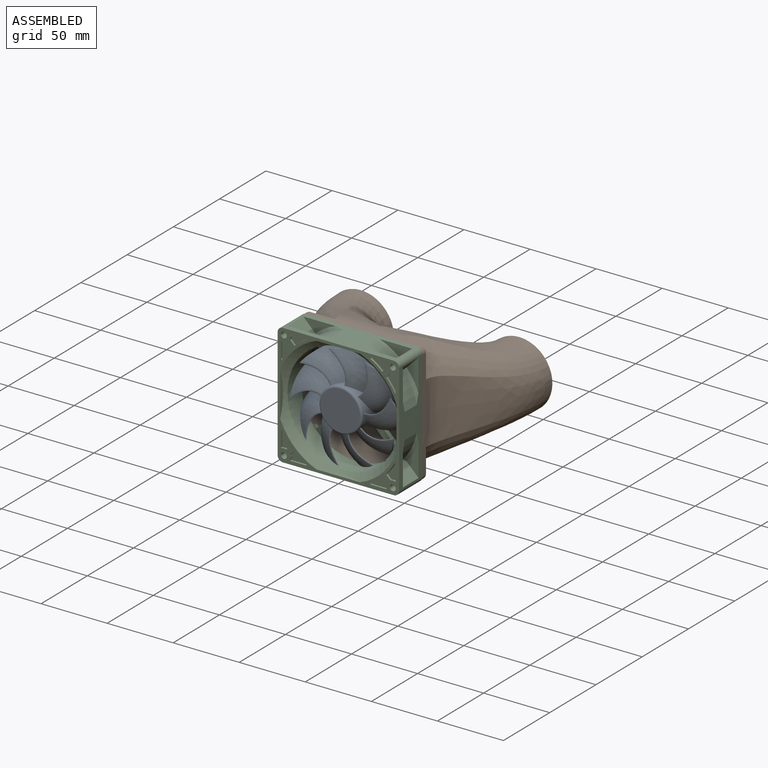
[diagram: assembled view]
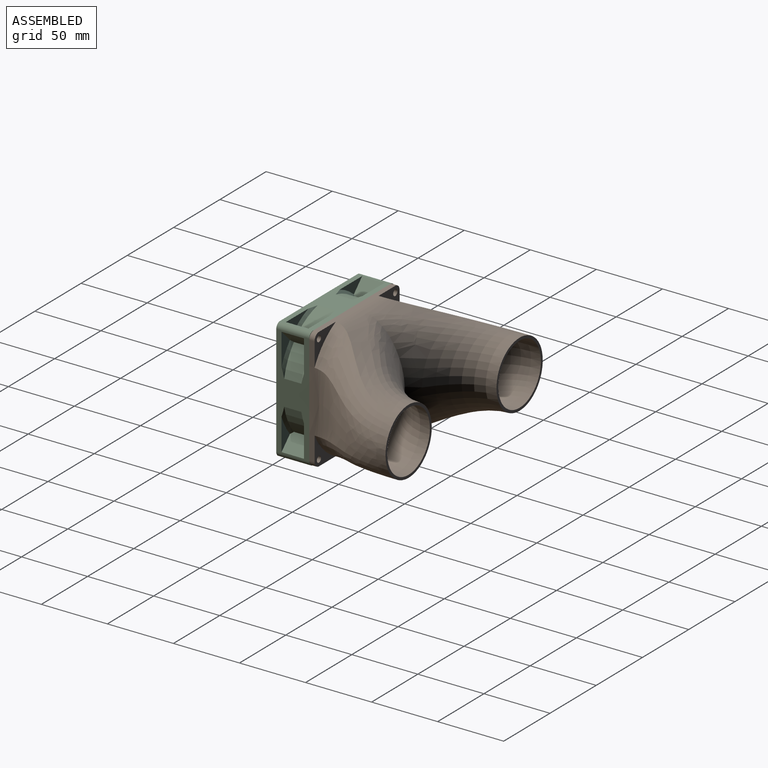
[diagram: assembled view, second angle]
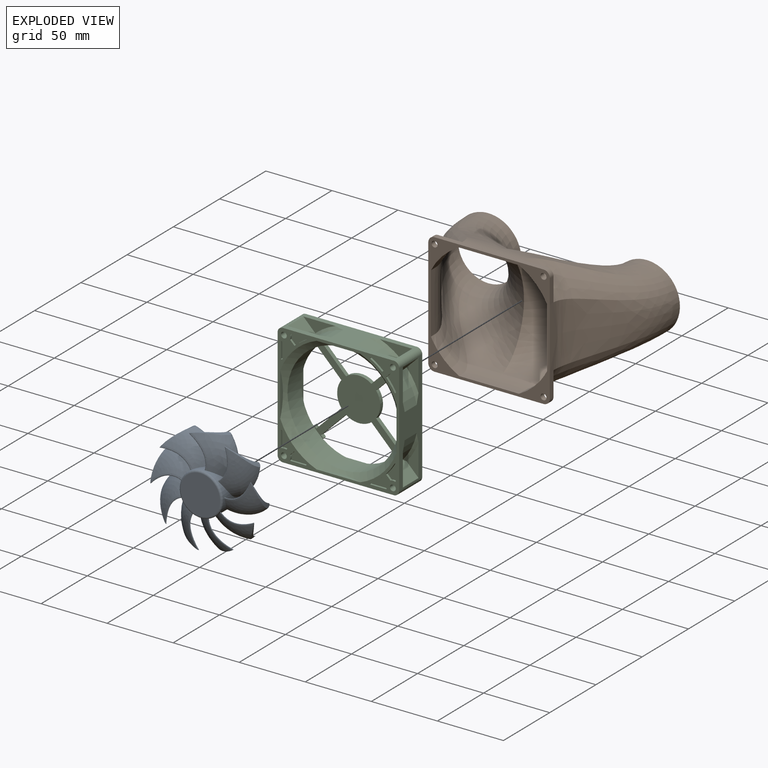
[diagram: exploded view]
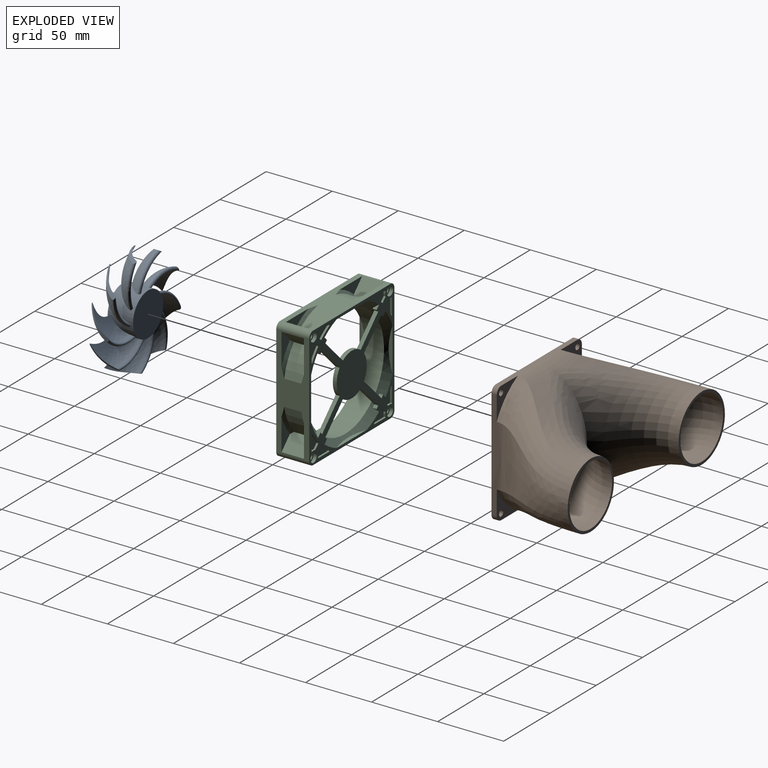
[diagram: exploded view, second angle]
ASSEMBLY  parts=3 mates=2
PART A: 49 faces, bbox 100.9x20x100.5 mm
  f0: plane 29.6x29.6mm, normal (0,-1,0), area 688.1mm2, adj f2
  f1: plane 32.6x32.6mm, normal (0,1,0), area 834.7mm2, adj f35
  f2: torus R=14.8mm, axis (0,-1,0), area 233.2mm2, adj f0,f35
  f3: bspline ~27.34x15.52mm, area 94.4mm2, adj f4,f5,f35,f48
  f4: bspline ~43.58x32.95mm, area 582mm2, adj f3,f6,f35,f48
  f5: bspline ~41.08x30.81mm, area 537.9mm2, adj f3,f6,f35,f48
  f6: bspline ~38.07x32.1mm, area 130.3mm2, adj f4,f5,f35,f48
  f7: bspline ~28.72x14.84mm, area 94.4mm2, adj f8,f10,f35,f47
  f8: bspline ~51.68x27.52mm, area 582mm2, adj f7,f9,f35,f47
  f9: bspline ~48.87x17.06mm, area 130.3mm2, adj f8,f10,f35,f47
  f10: bspline ~48.58x25.61mm, area 537.9mm2, adj f7,f9,f35,f47
  f11: bspline ~29.45x12.53mm, area 94.4mm2, adj f12,f14,f35,f46
  f12: bspline ~48.28x29.51mm, area 582mm2, adj f11,f13,f35,f46
  f13: bspline ~43.02x26.7mm, area 130.3mm2, adj f12,f14,f35,f46
  f14: bspline ~45.49x27.46mm, area 537.9mm2, adj f11,f13,f35,f46
  f15: bspline ~26.27x18.04mm, area 94.4mm2, adj f16,f18,f35,f45
  f16: bspline ~48.54x31.03mm, area 582mm2, adj f15,f17,f35,f45
  f17: bspline ~46.62x21.88mm, area 130.3mm2, adj f16,f18,f35,f45
  f18: bspline ~45.61x29.03mm, area 537.9mm2, adj f15,f17,f35,f45
  f19: bspline ~30.67x9.94mm, area 94.4mm2, adj f20,f22,f35,f44
  f20: bspline ~51.51x26.33mm, area 582mm2, adj f19,f21,f35,f44
  f21: bspline ~46.67x21.66mm, area 130.3mm2, adj f20,f22,f35,f44
  f22: bspline ~48.51x24.37mm, area 537.9mm2, adj f19,f21,f35,f44
  f23: bspline ~23.03x21.23mm, area 94.4mm2, adj f24,f26,f35,f43
  f24: bspline ~43.93x34.52mm, area 582.1mm2, adj f23,f25,f35,f43
  f25: bspline ~42.95x26.97mm, area 130.3mm2, adj f24,f26,f35,f43
  f26: bspline ~41.25x32.43mm, area 538.1mm2, adj f23,f25,f35,f43
  f27: bspline ~30.95x8.89mm, area 94.4mm2, adj f28,f30,f35,f42
  f28: bspline ~53.18x23.38mm, area 582mm2, adj f27,f29,f35,f42
  f29: bspline ~48.89x16.99mm, area 130.3mm2, adj f28,f30,f35,f42
  f30: bspline ~50.05x21.49mm, area 537.9mm2, adj f27,f29,f35,f42
  f31: bspline ~24.45x19.19mm, area 94.4mm2, adj f32,f34,f35,f41
  f32: bspline ~38.04x37.99mm, area 582mm2, adj f31,f33,f35,f41
  f33: bspline ~37.98x32.31mm, area 130.3mm2, adj f32,f34,f35,f41
  f34: bspline ~35.86x35.64mm, area 537.9mm2, adj f31,f33,f35,f41
  f35: cylinder r=16.3mm len=32.6mm, axis (0,1,0), area 1561.2mm2, adj f1,f2,f3,f4,f5,f6,f7,f8
  f36: bspline ~30.3x11.8mm, area 94.4mm2, adj f35,f37,f39,f40
  f37: bspline ~53.24x24.25mm, area 582mm2, adj f35,f36,f38,f40
  f38: bspline ~49.64x12.81mm, area 130.3mm2, adj f35,f37,f39,f40
  f39: bspline ~50.08x22.41mm, area 537.9mm2, adj f35,f36,f38,f40
  f40: cylinder r=39.84mm len=22.19mm, axis (0,-1,0), area 50.1mm2, adj f36,f37,f38,f39
  f41: cylinder r=39.84mm len=19.41mm, axis (0,-1,0), area 50.2mm2, adj f31,f32,f33,f34
  f42: cylinder r=39.84mm len=21.2mm, axis (0,-1,0), area 50.2mm2, adj f27,f28,f29,f30
  f43: cylinder r=39.84mm len=21.09mm, axis (0,-1,0), area 50.2mm2, adj f23,f24,f25,f26
  f44: cylinder r=39.84mm len=19.57mm, axis (0,-1,0), area 50.2mm2, adj f19,f20,f21,f22
  f45: cylinder r=39.84mm len=22.13mm, axis (0,-1,0), area 50.2mm2, adj f15,f16,f17,f18
  f46: cylinder r=39.84mm len=17.34mm, axis (0,-1,0), area 50.2mm2, adj f11,f12,f13,f14
  f47: cylinder r=39.84mm len=22.5mm, axis (0,-1,0), area 50.2mm2, adj f7,f8,f9,f10
  f48: cylinder r=39.84mm len=17.13mm, axis (0,-1,0), area 50.2mm2, adj f3,f4,f5,f6
PART B: 39 faces, bbox 178.1x96.3x134.4 mm
  f0: bspline ~85x59.85mm, area 1921.4mm2, adj f4,f6,f7,f38
  f1: bspline ~85.04x59.77mm, area 1921.4mm2, adj f12,f13,f14,f33
  f2: bspline ~90.29x62.31mm, area 1921.4mm2, adj f12,f13,f14,f28
  f3: bspline ~81x62.31mm, area 1921.4mm2, adj f4,f6,f7,f23
  f4: bspline ~134.92x92mm, area 9193.5mm2, adj f0,f3,f5,f6,f12,f22,f37
  f5: plane 92.19x92.19mm, normal (0,0,-1), area 1353.8mm2, adj f4,f7,f8,f9,f10,f11,f12,f14
  f6: plane 50.71x50.71mm, normal (0,0,1), area 301.3mm2, adj f0,f3,f4,f7,f8,f9,f10,f11
  f7: bspline ~111.7x47.33mm, area 3213.2mm2, adj f0,f3,f5,f6,f19,f35
  f8: offset ~127.15x97.49mm, area 8884.4mm2, adj f5,f6,f9,f11,f15
  f9: offset ~100.5x63.85mm, area 1860.5mm2, adj f5,f6,f8,f10
  f10: offset ~97.9x50.71mm, area 3123.4mm2, adj f5,f6,f9,f11
  f11: offset ~100.04x66.31mm, area 1861.3mm2, adj f5,f6,f8,f10
  f12: bspline ~117.26x109.1mm, area 9193.5mm2, adj f1,f2,f4,f5,f13,f25,f30
  f13: plane 50.71x50.71mm, normal (0,0,1), area 301.3mm2, adj f1,f2,f12,f14,f15,f16,f17,f18
  f14: bspline ~111.7x47.33mm, area 3213.2mm2, adj f1,f2,f5,f13,f24,f32
  f15: offset ~127.15x97.05mm, area 8884.4mm2, adj f5,f8,f13,f16,f18
  f16: offset ~100.04x63.77mm, area 1860.5mm2, adj f5,f13,f15,f17
  f17: offset ~97.9x50.71mm, area 3123.4mm2, adj f5,f13,f16,f18
  f18: offset ~120.94x66.11mm, area 1861.3mm2, adj f5,f13,f15,f17
  f19: plane 18.05x4mm, normal (-1,0,0), area 72.2mm2, adj f5,f7,f20,f23
  f20: cylinder r=4.75mm len=4.75mm, axis (0,0,1), area 29.8mm2, adj f5,f19,f22,f23
  f21: cylinder r=2.25mm len=4.5mm, axis (0,0,1), area 56.5mm2, adj f5,f23
  f22: plane 18.05x4mm, normal (0,-1,0), area 72.2mm2, adj f4,f5,f20,f23
  f23: plane 22.83x22.83mm, normal (0,0,1), area 183.1mm2, adj f3,f19,f20,f21,f22
  f24: plane 18.05x4mm, normal (1,0,0), area 72.2mm2, adj f5,f14,f26,f28
  f25: plane 18.05x4mm, normal (0,-1,0), area 72.2mm2, adj f5,f12,f26,f28
  f26: cylinder r=4.75mm len=4.75mm, axis (0,0,1), area 29.8mm2, adj f5,f24,f25,f28
  f27: cylinder r=2.25mm len=4.5mm, axis (0,0,1), area 56.5mm2, adj f5,f28
  f28: plane 22.83x22.83mm, normal (0,0,1), area 183.2mm2, adj f2,f24,f25,f26,f27
  f29: cylinder r=4.75mm len=4.75mm, axis (0,0,1), area 29.8mm2, adj f5,f30,f32,f33
  f30: plane 18.05x4mm, normal (0,1,0), area 72.2mm2, adj f5,f12,f29,f33
  f31: cylinder r=2.25mm len=4.5mm, axis (0,0,1), area 56.5mm2, adj f5,f33
  f32: plane 18.05x4mm, normal (1,0,0), area 72.2mm2, adj f5,f14,f29,f33
  f33: plane 22.83x22.83mm, normal (0,0,1), area 183.2mm2, adj f1,f29,f30,f31,f32
  f34: cylinder r=4.75mm len=4.75mm, axis (0,0,1), area 29.8mm2, adj f5,f35,f37,f38
  f35: plane 18.05x4mm, normal (-1,0,0), area 72.2mm2, adj f5,f7,f34,f38
  f36: cylinder r=2.25mm len=4.5mm, axis (0,0,1), area 56.5mm2, adj f5,f38
  f37: plane 18.05x4mm, normal (0,1,0), area 72.2mm2, adj f4,f5,f34,f38
  f38: plane 22.83x22.83mm, normal (0,0,1), area 183.1mm2, adj f0,f34,f35,f36,f37
PART C: 254 faces, bbox 95.9x25x95.9 mm
  f0: plane 84x25mm, normal (1,0,0), area 1058.8mm2, adj f14,f15,f25,f26,f230,f231,f232,f233
  f1: plane 84x25mm, normal (0,0,-1), area 1058.8mm2, adj f14,f15,f24,f25,f224,f225,f226,f227
  f2: plane 84x25mm, normal (-1,0,0), area 1058.8mm2, adj f14,f15,f24,f27,f218,f219,f220,f221
  f3: plane 84x25mm, normal (0,0,1), area 1058.8mm2, adj f14,f15,f26,f27,f206,f207,f208,f209
  f4: cylinder r=42mm len=84mm, axis (0,1,0), area 3958.4mm2, adj f32,f33
  f5: plane 68.89x68.89mm, normal (0,-1,0), area 1407.5mm2, adj f33,f178,f179,f180,f181,f182,f183,f184
  f6: plane 33.05x3.01mm, normal (0,0,1), area 65.7mm2, adj f14,f32
  f7: plane 33.05x3.01mm, normal (-1,0,0), area 65.7mm2, adj f14,f32
  f8: plane 33.05x3.01mm, normal (0,0,-1), area 65.7mm2, adj f14,f32
  f9: plane 33.05x3.01mm, normal (1,0,0), area 65.7mm2, adj f14,f32
  f10: plane 33.05x3.01mm, normal (0,0,1), area 65.7mm2, adj f15,f33
  f11: plane 33.05x3.01mm, normal (-1,0,0), area 65.7mm2, adj f15,f33
  f12: plane 33.05x3.01mm, normal (0,0,-1), area 65.7mm2, adj f15,f33
  f13: plane 33.05x3.01mm, normal (1,0,0), area 65.7mm2, adj f15,f33
  f14: plane 92x92mm, normal (0,-1,0), area 1290mm2, adj f0,f1,f2,f3,f6,f7,f8,f9
  f15: plane 92x92mm, normal (0,1,0), area 2733.3mm2, adj f0,f1,f2,f3,f10,f11,f12,f13
  f16: plane 6.8x6.8mm, normal (0,1,0), area 21.1mm2, adj f17,f31
  f17: cylinder r=3.4mm len=6.8mm, axis (0,1,0), area 53.4mm2, adj f15,f16
  f18: cylinder r=3.4mm len=6.8mm, axis (0,1,0), area 53.4mm2, adj f15,f19
  f19: plane 6.8x6.8mm, normal (0,1,0), area 21.1mm2, adj f18,f30
  f20: cylinder r=3.4mm len=6.8mm, axis (0,1,0), area 53.4mm2, adj f15,f21
  f21: plane 6.8x6.8mm, normal (0,1,0), area 21.1mm2, adj f20,f29
  f22: plane 6.8x6.8mm, normal (0,1,0), area 21.1mm2, adj f23,f28
  f23: cylinder r=3.4mm len=6.8mm, axis (0,1,0), area 53.4mm2, adj f15,f22
  f24: cylinder r=4mm len=25mm, axis (0,-1,0), area 157.1mm2, adj f1,f2,f14,f15
  f25: cylinder r=4mm len=25mm, axis (0,-1,0), area 157.1mm2, adj f0,f1,f14,f15
  f26: cylinder r=4mm len=25mm, axis (0,-1,0), area 157.1mm2, adj f0,f3,f14,f15
  f27: cylinder r=4mm len=25mm, axis (0,-1,0), area 157.1mm2, adj f2,f3,f14,f15
  f28: cylinder r=2.2mm len=22.5mm, axis (0,1,0), area 311mm2, adj f14,f22
  f29: cylinder r=2.2mm len=22.5mm, axis (0,1,0), area 311mm2, adj f14,f21
  f30: cylinder r=2.2mm len=22.5mm, axis (0,1,0), area 311mm2, adj f14,f19
  f31: cylinder r=2.2mm len=22.5mm, axis (0,1,0), area 311mm2, adj f14,f16
  f32: cone r=47mm half-angle=45deg, axis (0,-1,0), area 1600.8mm2, adj f4,f6,f7,f8,f9,f14
  f33: cone r=42mm half-angle=45deg, axis (0,1,0), area 1430.6mm2, adj f4,f5,f10,f11,f12,f13,f15,f180
  f34: plane 11.41x1.5mm, normal (1,0,0), area 17.1mm2, adj f15,f38,f39,f42
  f35: cylinder r=5mm len=3.09mm, axis (0,1,0), area 4.7mm2, adj f15,f38,f41,f42
  f36: plane 2.83x2.83mm, normal (-0.71,0,0.71), area 6mm2, adj f15,f38,f40,f41
  f37: cylinder r=49mm len=8.49mm, axis (0,1,0), area 15.8mm2, adj f15,f38,f39,f40
  f38: plane 12.41x7.23mm, normal (0,1,0), area 53.2mm2, adj f34,f35,f36,f37,f39,f40,f41,f42
  f39: cylinder r=0.5mm len=1.5mm, axis (0,1,0), area 2mm2, adj f15,f34,f37,f38
  f40: cylinder r=0.5mm len=1.5mm, axis (0,1,0), area 1.1mm2, adj f15,f36,f37,f38
  f41: cylinder r=0.5mm len=1.5mm, axis (0,1,0), area 0.8mm2, adj f15,f35,f36,f38
  f42: cylinder r=0.5mm len=1.5mm, axis (0,1,0), area 1.4mm2, adj f15,f34,f35,f38
  f43: plane 11.41x1.5mm, normal (0,0,1), area 17.1mm2, adj f15,f47,f48,f51
  f44: cylinder r=49mm len=8.49mm, axis (0,1,0), area 15.8mm2, adj f15,f47,f48,f49
  f45: plane 2.83x2.83mm, normal (0.71,0,-0.71), area 6mm2, adj f15,f47,f49,f50
  f46: cylinder r=5mm len=3.09mm, axis (0,1,0), area 4.7mm2, adj f15,f47,f50,f51
  f47: plane 12.41x7.23mm, normal (0,1,0), area 53.2mm2, adj f43,f44,f45,f46,f48,f49,f50,f51
  f48: cylinder r=0.5mm len=1.5mm, axis (0,1,0), area 2mm2, adj f15,f43,f44,f47
  f49: cylinder r=0.5mm len=1.5mm, axis (0,1,0), area 1.1mm2, adj f15,f44,f45,f47
  f50: cylinder r=0.5mm len=1.5mm, axis (0,1,0), area 0.8mm2, adj f15,f45,f46,f47
  f51: cylinder r=0.5mm len=1.5mm, axis (0,1,0), area 1.4mm2, adj f15,f43,f46,f47
  f52: plane 11.41x1.5mm, normal (1,0,0), area 17.1mm2, adj f14,f56,f57,f60
  f53: cylinder r=49mm len=8.49mm, axis (0,-1,0), area 15.8mm2, adj f14,f56,f57,f58
  f54: plane 2.83x2.83mm, normal (-0.71,0,0.71), area 6mm2, adj f14,f56,f58,f59
  f55: cylinder r=5mm len=3.09mm, axis (0,-1,0), area 4.7mm2, adj f14,f56,f59,f60
  f56: plane 12.41x7.23mm, normal (0,-1,0), area 53.2mm2, adj f52,f53,f54,f55,f57,f58,f59,f60
  f57: cylinder r=0.5mm len=1.5mm, axis (0,-1,0), area 2mm2, adj f14,f52,f53,f56
  f58: cylinder r=0.5mm len=1.5mm, axis (0,-1,0), area 1.1mm2, adj f14,f53,f54,f56
  f59: cylinder r=0.5mm len=1.5mm, axis (0,-1,0), area 0.8mm2, adj f14,f54,f55,f56
  f60: cylinder r=0.5mm len=1.5mm, axis (0,-1,0), area 1.4mm2, adj f14,f52,f55,f56
  f61: plane 11.41x1.5mm, normal (0,0,1), area 17.1mm2, adj f14,f65,f66,f69
  f62: cylinder r=5mm len=3.09mm, axis (0,-1,0), area 4.7mm2, adj f14,f65,f68,f69
  f63: plane 2.83x2.83mm, normal (0.71,0,-0.71), area 6mm2, adj f14,f65,f67,f68
  f64: cylinder r=49mm len=8.49mm, axis (0,-1,0), area 15.8mm2, adj f14,f65,f66,f67
  f65: plane 12.41x7.23mm, normal (0,-1,0), area 53.2mm2, adj f61,f62,f63,f64,f66,f67,f68,f69
  f66: cylinder r=0.5mm len=1.5mm, axis (0,-1,0), area 2mm2, adj f14,f61,f64,f65
  f67: cylinder r=0.5mm len=1.5mm, axis (0,-1,0), area 1.1mm2, adj f14,f63,f64,f65
  f68: cylinder r=0.5mm len=1.5mm, axis (0,-1,0), area 0.8mm2, adj f14,f62,f63,f65
  f69: cylinder r=0.5mm len=1.5mm, axis (0,-1,0), area 1.4mm2, adj f14,f61,f62,f65
  f70: plane 11.41x1.5mm, normal (0,0,-1), area 17.1mm2, adj f14,f74,f75,f78
  f71: cylinder r=49mm len=8.49mm, axis (0,-1,0), area 15.8mm2, adj f14,f74,f75,f76
  f72: plane 2.83x2.83mm, normal (0.71,0,0.71), area 6mm2, adj f14,f74,f76,f77
  f73: cylinder r=5mm len=3.09mm, axis (0,-1,0), area 4.7mm2, adj f14,f74,f77,f78
  f74: plane 12.41x7.23mm, normal (0,-1,0), area 53.2mm2, adj f70,f71,f72,f73,f75,f76,f77,f78
  f75: cylinder r=0.5mm len=1.5mm, axis (0,-1,0), area 2mm2, adj f14,f70,f71,f74
  f76: cylinder r=0.5mm len=1.5mm, axis (0,-1,0), area 1.1mm2, adj f14,f71,f72,f74
  f77: cylinder r=0.5mm len=1.5mm, axis (0,-1,0), area 0.8mm2, adj f14,f72,f73,f74
  f78: cylinder r=0.5mm len=1.5mm, axis (0,-1,0), area 1.4mm2, adj f14,f70,f73,f74
  f79: plane 11.41x1.5mm, normal (1,0,0), area 17.1mm2, adj f14,f83,f84,f87
  f80: cylinder r=5mm len=3.09mm, axis (0,-1,0), area 4.7mm2, adj f14,f83,f86,f87
  f81: plane 2.83x2.83mm, normal (-0.71,0,-0.71), area 6mm2, adj f14,f83,f85,f86
  f82: cylinder r=49mm len=8.49mm, axis (0,-1,0), area 15.8mm2, adj f14,f83,f84,f85
  f83: plane 12.41x7.23mm, normal (0,-1,0), area 53.2mm2, adj f79,f80,f81,f82,f84,f85,f86,f87
  f84: cylinder r=0.5mm len=1.5mm, axis (0,-1,0), area 2mm2, adj f14,f79,f82,f83
  f85: cylinder r=0.5mm len=1.5mm, axis (0,-1,0), area 1.1mm2, adj f14,f81,f82,f83
  f86: cylinder r=0.5mm len=1.5mm, axis (0,-1,0), area 0.8mm2, adj f14,f80,f81,f83
  f87: cylinder r=0.5mm len=1.5mm, axis (0,-1,0), area 1.4mm2, adj f14,f79,f80,f83
  f88: plane 11.41x1.5mm, normal (-1,0,0), area 17.1mm2, adj f14,f92,f93,f96
  f89: cylinder r=49mm len=8.49mm, axis (0,-1,0), area 15.8mm2, adj f14,f92,f93,f94
  f90: plane 2.83x2.83mm, normal (0.71,0,-0.71), area 6mm2, adj f14,f92,f94,f95
  f91: cylinder r=5mm len=3.09mm, axis (0,-1,0), area 4.7mm2, adj f14,f92,f95,f96
  f92: plane 12.41x7.23mm, normal (0,-1,0), area 53.2mm2, adj f88,f89,f90,f91,f93,f94,f95,f96
  f93: cylinder r=0.5mm len=1.5mm, axis (0,-1,0), area 2mm2, adj f14,f88,f89,f92
  f94: cylinder r=0.5mm len=1.5mm, axis (0,-1,0), area 1.1mm2, adj f14,f89,f90,f92
  f95: cylinder r=0.5mm len=1.5mm, axis (0,-1,0), area 0.8mm2, adj f14,f90,f91,f92
  f96: cylinder r=0.5mm len=1.5mm, axis (0,-1,0), area 1.4mm2, adj f14,f88,f91,f92
  f97: plane 11.41x1.5mm, normal (0,0,-1), area 17.1mm2, adj f14,f101,f102,f105
  f98: cylinder r=5mm len=3.09mm, axis (0,-1,0), area 4.7mm2, adj f14,f101,f104,f105
  f99: plane 2.83x2.83mm, normal (-0.71,0,0.71), area 6mm2, adj f14,f101,f103,f104
  f100: cylinder r=49mm len=8.49mm, axis (0,-1,0), area 15.8mm2, adj f14,f101,f102,f103
  f101: plane 12.41x7.23mm, normal (0,-1,0), area 53.2mm2, adj f97,f98,f99,f100,f102,f103,f104,f105
  f102: cylinder r=0.5mm len=1.5mm, axis (0,-1,0), area 2mm2, adj f14,f97,f100,f101
  f103: cylinder r=0.5mm len=1.5mm, axis (0,-1,0), area 1.1mm2, adj f14,f99,f100,f101
  f104: cylinder r=0.5mm len=1.5mm, axis (0,-1,0), area 0.8mm2, adj f14,f98,f99,f101
  f105: cylinder r=0.5mm len=1.5mm, axis (0,-1,0), area 1.4mm2, adj f14,f97,f98,f101
  f106: plane 11.41x1.5mm, normal (0,0,1), area 17.1mm2, adj f14,f110,f111,f114
  f107: cylinder r=49mm len=8.49mm, axis (0,-1,0), area 15.8mm2, adj f14,f110,f111,f112
  f108: plane 2.83x2.83mm, normal (-0.71,0,-0.71), area 6mm2, adj f14,f110,f112,f113
  f109: cylinder r=5mm len=3.09mm, axis (0,-1,0), area 4.7mm2, adj f14,f110,f113,f114
  f110: plane 12.41x7.23mm, normal (0,-1,0), area 53.2mm2, adj f106,f107,f108,f109,f111,f112,f113,f114
  f111: cylinder r=0.5mm len=1.5mm, axis (0,-1,0), area 2mm2, adj f14,f106,f107,f110
  f112: cylinder r=0.5mm len=1.5mm, axis (0,-1,0), area 1.1mm2, adj f14,f107,f108,f110
  f113: cylinder r=0.5mm len=1.5mm, axis (0,-1,0), area 0.8mm2, adj f14,f108,f109,f110
  f114: cylinder r=0.5mm len=1.5mm, axis (0,-1,0), area 1.4mm2, adj f14,f106,f109,f110
  f115: plane 11.41x1.5mm, normal (-1,0,0), area 17.1mm2, adj f14,f119,f120,f123
  f116: cylinder r=5mm len=3.09mm, axis (0,-1,0), area 4.7mm2, adj f14,f119,f122,f123
  f117: plane 2.83x2.83mm, normal (0.71,0,0.71), area 6mm2, adj f14,f119,f121,f122
  f118: cylinder r=49mm len=8.49mm, axis (0,-1,0), area 15.8mm2, adj f14,f119,f120,f121
  f119: plane 12.41x7.23mm, normal (0,-1,0), area 53.2mm2, adj f115,f116,f117,f118,f120,f121,f122,f123
  f120: cylinder r=0.5mm len=1.5mm, axis (0,-1,0), area 2mm2, adj f14,f115,f118,f119
  f121: cylinder r=0.5mm len=1.5mm, axis (0,-1,0), area 1.1mm2, adj f14,f117,f118,f119
  f122: cylinder r=0.5mm len=1.5mm, axis (0,-1,0), area 0.8mm2, adj f14,f116,f117,f119
  f123: cylinder r=0.5mm len=1.5mm, axis (0,-1,0), area 1.4mm2, adj f14,f115,f116,f119
  f124: plane 11.41x1.5mm, normal (0,0,-1), area 17.1mm2, adj f15,f128,f139,f142
  f125: cylinder r=5mm len=3.09mm, axis (0,1,0), area 4.7mm2, adj f15,f128,f141,f142
  f126: plane 2.83x2.83mm, normal (0.71,0,0.71), area 6mm2, adj f15,f128,f140,f141
  f127: cylinder r=49mm len=8.49mm, axis (0,1,0), area 15.8mm2, adj f15,f128,f139,f140
  f128: plane 12.41x7.23mm, normal (0,1,0), area 53.2mm2, adj f124,f125,f126,f127,f139,f140,f141,f142
  f129: plane 11.41x1.5mm, normal (-1,0,0), area 17.1mm2, adj f15,f133,f143,f146
  f130: cylinder r=5mm len=3.09mm, axis (0,1,0), area 4.7mm2, adj f15,f133,f145,f146
  f131: plane 2.83x2.83mm, normal (0.71,0,-0.71), area 6mm2, adj f15,f133,f144,f145
  f132: cylinder r=49mm len=8.49mm, axis (0,1,0), area 15.8mm2, adj f15,f133,f143,f144
  f133: plane 12.41x7.23mm, normal (0,1,0), area 53.2mm2, adj f129,f130,f131,f132,f143,f144,f145,f146
  f134: plane 11.41x1.5mm, normal (0,0,1), area 17.1mm2, adj f15,f138,f147,f150
  f135: cylinder r=5mm len=3.09mm, axis (0,1,0), area 4.7mm2, adj f15,f138,f149,f150
  f136: plane 2.83x2.83mm, normal (-0.71,0,-0.71), area 6mm2, adj f15,f138,f148,f149
  f137: cylinder r=49mm len=8.49mm, axis (0,1,0), area 15.8mm2, adj f15,f138,f147,f148
  f138: plane 12.41x7.23mm, normal (0,1,0), area 53.2mm2, adj f134,f135,f136,f137,f147,f148,f149,f150
  f139: cylinder r=0.5mm len=1.5mm, axis (0,1,0), area 2mm2, adj f15,f124,f127,f128
  f140: cylinder r=0.5mm len=1.5mm, axis (0,1,0), area 1.1mm2, adj f15,f126,f127,f128
  f141: cylinder r=0.5mm len=1.5mm, axis (0,1,0), area 0.8mm2, adj f15,f125,f126,f128
  f142: cylinder r=0.5mm len=1.5mm, axis (0,1,0), area 1.4mm2, adj f15,f124,f125,f128
  f143: cylinder r=0.5mm len=1.5mm, axis (0,1,0), area 2mm2, adj f15,f129,f132,f133
  f144: cylinder r=0.5mm len=1.5mm, axis (0,1,0), area 1.1mm2, adj f15,f131,f132,f133
  f145: cylinder r=0.5mm len=1.5mm, axis (0,1,0), area 0.8mm2, adj f15,f130,f131,f133
  f146: cylinder r=0.5mm len=1.5mm, axis (0,1,0), area 1.4mm2, adj f15,f129,f130,f133
  f147: cylinder r=0.5mm len=1.5mm, axis (0,1,0), area 2mm2, adj f15,f134,f137,f138
  f148: cylinder r=0.5mm len=1.5mm, axis (0,1,0), area 1.1mm2, adj f15,f136,f137,f138
  f149: cylinder r=0.5mm len=1.5mm, axis (0,1,0), area 0.8mm2, adj f15,f135,f136,f138
  f150: cylinder r=0.5mm len=1.5mm, axis (0,1,0), area 1.4mm2, adj f15,f134,f135,f138
  f151: plane 11.41x1.5mm, normal (1,0,0), area 17.1mm2, adj f15,f155,f156,f159
  f152: cylinder r=49mm len=8.49mm, axis (0,1,0), area 15.8mm2, adj f15,f155,f156,f157
  f153: plane 2.83x2.83mm, normal (-0.71,0,-0.71), area 6mm2, adj f15,f155,f157,f158
  f154: cylinder r=5mm len=3.09mm, axis (0,1,0), area 4.7mm2, adj f15,f155,f158,f159
  f155: plane 12.41x7.23mm, normal (0,1,0), area 53.2mm2, adj f151,f152,f153,f154,f156,f157,f158,f159
  f156: cylinder r=0.5mm len=1.5mm, axis (0,1,0), area 2mm2, adj f15,f151,f152,f155
  f157: cylinder r=0.5mm len=1.5mm, axis (0,1,0), area 1.1mm2, adj f15,f152,f153,f155
  f158: cylinder r=0.5mm len=1.5mm, axis (0,1,0), area 0.8mm2, adj f15,f153,f154,f155
  f159: cylinder r=0.5mm len=1.5mm, axis (0,1,0), area 1.4mm2, adj f15,f151,f154,f155
  f160: plane 11.41x1.5mm, normal (0,0,-1), area 17.1mm2, adj f15,f164,f165,f168
  f161: cylinder r=49mm len=8.49mm, axis (0,1,0), area 15.8mm2, adj f15,f164,f165,f166
  f162: plane 2.83x2.83mm, normal (-0.71,0,0.71), area 6mm2, adj f15,f164,f166,f167
  f163: cylinder r=5mm len=3.09mm, axis (0,1,0), area 4.7mm2, adj f15,f164,f167,f168
  f164: plane 12.41x7.23mm, normal (0,1,0), area 53.2mm2, adj f160,f161,f162,f163,f165,f166,f167,f168
  f165: cylinder r=0.5mm len=1.5mm, axis (0,1,0), area 2mm2, adj f15,f160,f161,f164
  f166: cylinder r=0.5mm len=1.5mm, axis (0,1,0), area 1.1mm2, adj f15,f161,f162,f164
  f167: cylinder r=0.5mm len=1.5mm, axis (0,1,0), area 0.8mm2, adj f15,f162,f163,f164
  f168: cylinder r=0.5mm len=1.5mm, axis (0,1,0), area 1.4mm2, adj f15,f160,f163,f164
  f169: plane 11.41x1.5mm, normal (-1,0,0), area 17.1mm2, adj f15,f173,f174,f177
  f170: cylinder r=49mm len=8.49mm, axis (0,1,0), area 15.8mm2, adj f15,f173,f174,f175
  f171: plane 2.83x2.83mm, normal (0.71,0,0.71), area 6mm2, adj f15,f173,f175,f176
  f172: cylinder r=5mm len=3.09mm, axis (0,1,0), area 4.7mm2, adj f15,f173,f176,f177
  f173: plane 12.41x7.23mm, normal (0,1,0), area 53.2mm2, adj f169,f170,f171,f172,f174,f175,f176,f177
  f174: cylinder r=0.5mm len=1.5mm, axis (0,1,0), area 2mm2, adj f15,f169,f170,f173
  f175: cylinder r=0.5mm len=1.5mm, axis (0,1,0), area 1.1mm2, adj f15,f170,f171,f173
  f176: cylinder r=0.5mm len=1.5mm, axis (0,1,0), area 0.8mm2, adj f15,f171,f172,f173
  f177: cylinder r=0.5mm len=1.5mm, axis (0,1,0), area 1.4mm2, adj f15,f169,f172,f173
  f178: plane 18.97x18.97mm, normal (-0.71,0,-0.71), area 80.5mm2, adj f5,f15,f179,f205
  f179: plane 3x1.77mm, normal (-0.71,0,0.71), area 7.5mm2, adj f5,f15,f178,f180
  f180: plane 3.01x2.7mm, normal (-0.71,0,-0.71), area 6.9mm2, adj f5,f15,f33,f179
  f181: plane 3.01x2.7mm, normal (0.71,0,0.71), area 6.9mm2, adj f5,f15,f33,f182
  f182: plane 3x1.77mm, normal (-0.71,0,0.71), area 7.5mm2, adj f5,f15,f181,f183
  f183: plane 18.97x18.97mm, normal (0.71,0,0.71), area 80.5mm2, adj f5,f15,f182,f184
  f184: cylinder r=16.3mm len=19.24mm, axis (0,1,0), area 61.8mm2, adj f5,f15,f183,f185
  f185: plane 18.97x18.97mm, normal (0.71,0,-0.71), area 80.5mm2, adj f5,f15,f184,f186
  f186: plane 3x1.77mm, normal (-0.71,0,-0.71), area 7.5mm2, adj f5,f15,f185,f187
  f187: plane 3.01x2.7mm, normal (0.71,0,-0.71), area 6.9mm2, adj f5,f15,f33,f186
  f188: plane 3.01x2.7mm, normal (-0.71,0,0.71), area 6.9mm2, adj f5,f15,f33,f189
  f189: plane 3x1.77mm, normal (-0.71,0,-0.71), area 7.5mm2, adj f5,f15,f188,f190
  f190: plane 18.97x18.97mm, normal (-0.71,0,0.71), area 80.5mm2, adj f5,f15,f189,f191
  f191: cylinder r=16.3mm len=19.24mm, axis (0,1,0), area 61.8mm2, adj f5,f15,f190,f192
  f192: plane 18.97x18.97mm, normal (0.71,0,0.71), area 80.5mm2, adj f5,f15,f191,f193
  f193: plane 3x1.77mm, normal (0.71,0,-0.71), area 7.5mm2, adj f5,f15,f192,f194
  f194: plane 3.01x2.7mm, normal (0.71,0,0.71), area 6.9mm2, adj f5,f15,f33,f193
  f195: plane 3.01x2.7mm, normal (-0.71,0,-0.71), area 6.9mm2, adj f5,f15,f33,f196
  f196: plane 3x1.77mm, normal (0.71,0,-0.71), area 7.5mm2, adj f5,f15,f195,f197
  f197: plane 18.97x18.97mm, normal (-0.71,0,-0.71), area 80.5mm2, adj f5,f15,f196,f198
  f198: cylinder r=16.3mm len=19.24mm, axis (0,1,0), area 61.8mm2, adj f5,f15,f197,f199
  f199: plane 18.97x18.97mm, normal (-0.71,0,0.71), area 80.5mm2, adj f5,f15,f198,f200
  f200: plane 3x1.77mm, normal (0.71,0,0.71), area 7.5mm2, adj f5,f15,f199,f201
  f201: plane 3.01x2.7mm, normal (-0.71,0,0.71), area 6.9mm2, adj f5,f15,f33,f200
  f202: plane 3.01x2.7mm, normal (0.71,0,-0.71), area 6.9mm2, adj f5,f15,f33,f203
  f203: plane 3x1.77mm, normal (0.71,0,0.71), area 7.5mm2, adj f5,f15,f202,f204
  f204: plane 18.97x18.97mm, normal (0.71,0,-0.71), area 80.5mm2, adj f5,f15,f203,f205
  f205: cylinder r=16.3mm len=19.24mm, axis (0,1,0), area 61.8mm2, adj f5,f15,f178,f204
  f206: plane 17x10.45mm, normal (0.71,0,0.71), area 247.2mm2, adj f3,f207,f208,f209,f216,f217
  f207: plane 24.31x9.03mm, normal (0,1,0), area 100.2mm2, adj f3,f206,f216
  f208: plane 24.31x9.03mm, normal (0,-1,0), area 100.2mm2, adj f3,f206,f217
  f209: cylinder r=47mm len=21.1mm, axis (0,1,0), area 309.4mm2, adj f3,f206,f216,f217
  f210: plane 17x10.45mm, normal (-0.71,0,0.71), area 247.2mm2, adj f3,f211,f212,f213,f214,f215
  f211: plane 24.31x9.03mm, normal (0,1,0), area 100.2mm2, adj f3,f210,f215
  f212: plane 24.31x9.03mm, normal (0,-1,0), area 100.2mm2, adj f3,f210,f214
  f213: cylinder r=47mm len=21.1mm, axis (0,1,0), area 309.4mm2, adj f3,f210,f214,f215
  f214: cone r=49mm half-angle=45deg, axis (0,1,0), area 58.1mm2, adj f3,f210,f212,f213
  f215: cone r=47mm half-angle=45deg, axis (0,-1,0), area 58.1mm2, adj f3,f210,f211,f213
  f216: cone r=49mm half-angle=45deg, axis (0,-1,0), area 58.1mm2, adj f3,f206,f207,f209
  f217: cone r=47mm half-angle=45deg, axis (0,1,0), area 58.1mm2, adj f3,f206,f208,f209
  f218: plane 24.31x9.03mm, normal (0,-1,0), area 100.2mm2, adj f2,f219,f223
  f219: plane 17x10.45mm, normal (-0.71,0,0.71), area 247.2mm2, adj f2,f218,f220,f221,f222,f223
  f220: plane 24.31x9.03mm, normal (0,1,0), area 100.2mm2, adj f2,f219,f221
  f221: cone r=49mm half-angle=45deg, axis (0,-1,0), area 58.1mm2, adj f2,f219,f220,f222
  f222: cylinder r=47mm len=21.1mm, axis (0,1,0), area 309.4mm2, adj f2,f219,f221,f223
  f223: cone r=47mm half-angle=45deg, axis (0,1,0), area 58.1mm2, adj f2,f218,f219,f222
  f224: plane 24.31x9.03mm, normal (0,-1,0), area 100.2mm2, adj f1,f225,f229
  f225: plane 17x10.45mm, normal (-0.71,0,-0.71), area 247.2mm2, adj f1,f224,f226,f227,f228,f229
  f226: plane 24.31x9.03mm, normal (0,1,0), area 100.2mm2, adj f1,f225,f227
  f227: cone r=49mm half-angle=45deg, axis (0,-1,0), area 58.1mm2, adj f1,f225,f226,f228
  f228: cylinder r=47mm len=21.1mm, axis (0,1,0), area 309.4mm2, adj f1,f225,f227,f229
  f229: cone r=47mm half-angle=45deg, axis (0,1,0), area 58.1mm2, adj f1,f224,f225,f228
  f230: plane 24.31x9.03mm, normal (0,-1,0), area 100.2mm2, adj f0,f231,f235
  f231: plane 17x10.45mm, normal (0.71,0,-0.71), area 247.2mm2, adj f0,f230,f232,f233,f234,f235
  f232: plane 24.31x9.03mm, normal (0,1,0), area 100.2mm2, adj f0,f231,f233
  f233: cone r=49mm half-angle=45deg, axis (0,-1,0), area 58.1mm2, adj f0,f231,f232,f234
  f234: cylinder r=47mm len=21.1mm, axis (0,1,0), area 309.4mm2, adj f0,f231,f233,f235
  f235: cone r=47mm half-angle=45deg, axis (0,1,0), area 58.1mm2, adj f0,f230,f231,f234
  f236: plane 24.31x9.03mm, normal (0,1,0), area 100.2mm2, adj f2,f237,f241
  f237: plane 17x10.45mm, normal (-0.71,0,-0.71), area 247.2mm2, adj f2,f236,f238,f239,f240,f241
  f238: plane 24.31x9.03mm, normal (0,-1,0), area 100.2mm2, adj f2,f237,f239
  f239: cone r=49mm half-angle=45deg, axis (0,1,0), area 58.1mm2, adj f2,f237,f238,f240
  f240: cylinder r=47mm len=21.1mm, axis (0,1,0), area 309.4mm2, adj f2,f237,f239,f241
  f241: cone r=47mm half-angle=45deg, axis (0,-1,0), area 58.1mm2, adj f2,f236,f237,f240
  f242: plane 24.31x9.03mm, normal (0,1,0), area 100.2mm2, adj f1,f243,f247
  f243: plane 17x10.45mm, normal (0.71,0,-0.71), area 247.2mm2, adj f1,f242,f244,f245,f246,f247
  f244: plane 24.31x9.03mm, normal (0,-1,0), area 100.2mm2, adj f1,f243,f245
  f245: cone r=49mm half-angle=45deg, axis (0,1,0), area 58.1mm2, adj f1,f243,f244,f246
  f246: cylinder r=47mm len=21.1mm, axis (0,1,0), area 309.4mm2, adj f1,f243,f245,f247
  f247: cone r=47mm half-angle=45deg, axis (0,-1,0), area 58.1mm2, adj f1,f242,f243,f246
  f248: plane 24.31x9.03mm, normal (0,1,0), area 100.2mm2, adj f0,f249,f253
  f249: plane 17x10.45mm, normal (0.71,0,0.71), area 247.2mm2, adj f0,f248,f250,f251,f252,f253
  f250: plane 24.31x9.03mm, normal (0,-1,0), area 100.2mm2, adj f0,f249,f251
  f251: cone r=49mm half-angle=45deg, axis (0,1,0), area 58.1mm2, adj f0,f249,f250,f252
  f252: cylinder r=47mm len=21.1mm, axis (0,1,0), area 309.4mm2, adj f0,f249,f251,f253
  f253: cone r=47mm half-angle=45deg, axis (0,-1,0), area 58.1mm2, adj f0,f248,f249,f252
PLACE A rot(axis=(0,-1,0),118.9deg) t=(0,2,0)mm
PLACE B rot(axis=(-1,0,0),90deg) t=(0,29,0)mm
PLACE C at identity fixed
MATE fastened B.f20 <-> C.f18  axis (0,-1,0) through (-41.25,25,41.25)mm
MATE revolute A.f2 <-> C.f4  axis (0,1,0) through (0,22,0)mm
